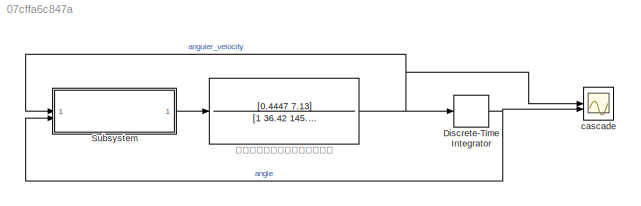
MODEL slx_07cffa6c847a
KIND model
CONFIG AbsTol = auto
CONFIG EnableMultiTasking = off
CONFIG FixedStep = auto
CONFIG MaxStep = auto
CONFIG MinStep = auto
CONFIG RelTol = 1e-3
CONFIG SampleTimeConstraint = Unconstrained
CONFIG SolverName = VariableStepAuto
CONFIG StartTime = 0.0
CONFIG StopTime = 2
BLOCK [DiscreteIntegrator] Discrete-Time Integrator
  ICPrevOutput = DiscIntNeverNeededParam
  ICPrevScaledInput = DiscIntNeverNeededParam
  InitialCondition = 1
  InitialConditionSetting = Auto
  SampleTime = -1
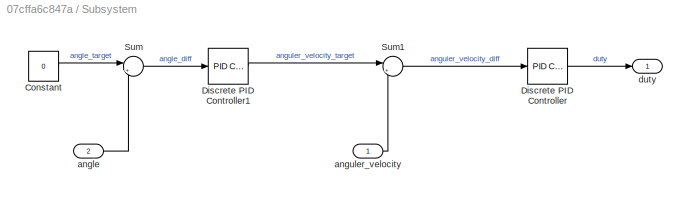
BLOCK [SubSystem] Subsystem
  SystemSampleTime = 1e-3
  TreatAsAtomicUnit = on
BLOCK [Constant] Subsystem/Constant
  Value = 0
BLOCK [Reference] Subsystem/Discrete PID Controller  REF=slpidlib/PID Controller
  LibrarySourceBlock = simulink/Discrete/Discrete PID Controller
  SourceBlock = slpidlib/PID Controller
  SourceType = PID 1dof
BLOCK [Reference] Subsystem/Discrete PID Controller1  REF=slpidlib/PID Controller
  LibrarySourceBlock = simulink/Discrete/Discrete PID Controller
  SourceBlock = slpidlib/PID Controller
  SourceType = PID 1dof
BLOCK [Sum] Subsystem/Sum
  Inputs = |+-
BLOCK [Sum] Subsystem/Sum1
  Inputs = |+-
BLOCK [Inport] Subsystem/angle
  Port = 2
BLOCK [Inport] Subsystem/anguler_velocity
BLOCK [Outport] Subsystem/duty
BLOCK [Scope] cascade
  Floating = off
  NumInputPorts = 2
  ScopeSpecificationString = Simulink.scopes.TimeScopeBlockCfg('CurrentConfiguration', extmgr.ConfigurationSet(extmgr.Configuration('Core','General UI',true),extmgr.Configuration('Core','Source UI',true),extmgr.Configuration('Sources','WiredSimulink',true),extmgr.Configuration('Visuals','Time Domain',true,'SerializedDisplays',{struct('MinYLimReal','-10.60018','MaxYLimReal','1.46811','YLabelReal','','MinYLimMag','0.00000','Max...<+2014ch>
BLOCK [TransferFcn] ロボットの回転方向の伝達関数
  Denominator = [1 36.42 145.2]
  Numerator = [0.4447 7.13]
NET Discrete-Time Integrator:1 -> Subsystem:2, cascade:2
LINE Subsystem/Constant:1 -> Subsystem/Sum:1
LINE Subsystem/Discrete PID Controller1:1 -> Subsystem/Sum1:1
LINE Subsystem/Discrete PID Controller:1 -> Subsystem/duty:1
LINE Subsystem/Sum1:1 -> Subsystem/Discrete PID Controller:1
LINE Subsystem/Sum:1 -> Subsystem/Discrete PID Controller1:1
LINE Subsystem/angle:1 -> Subsystem/Sum:2
LINE Subsystem/anguler_velocity:1 -> Subsystem/Sum1:2
LINE Subsystem:1 -> ロボットの回転方向の伝達関数:1
NET ロボットの回転方向の伝達関数:1 -> Discrete-Time Integrator:1, Subsystem:1, cascade:1
note: NET lines group one-source signal fan-out (src -> all destinations, sorted); 1:1 wires keep LINE
